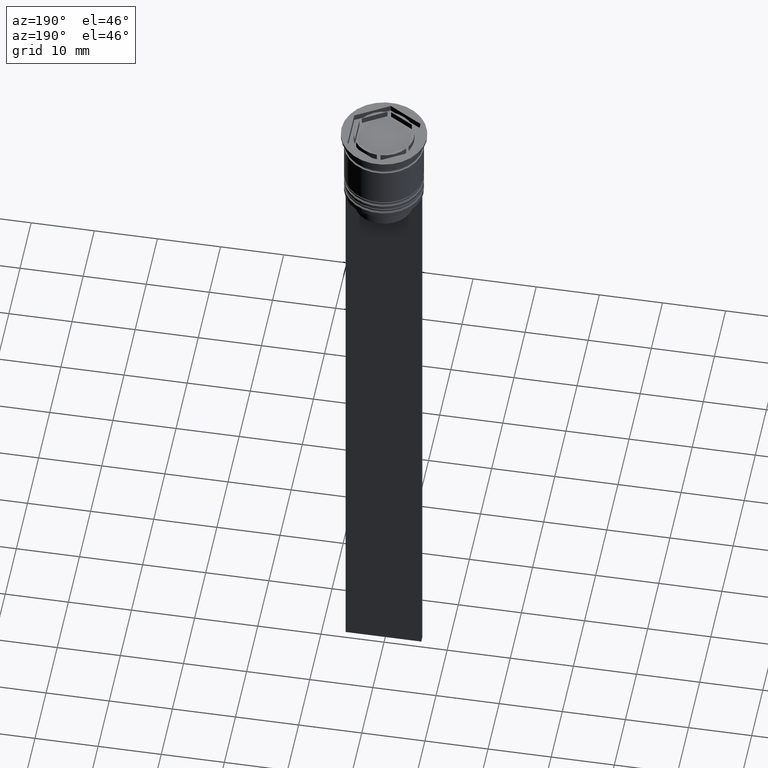
[diagram: clean part render]
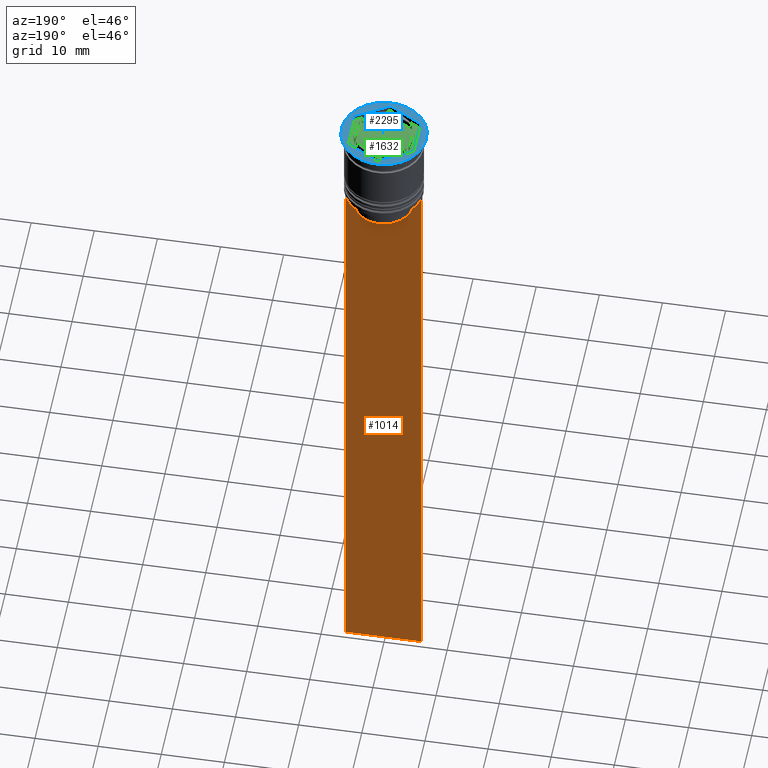
[diagram: same view with three faces highlighted in distinct colors, each labeled with its STEP entity id]
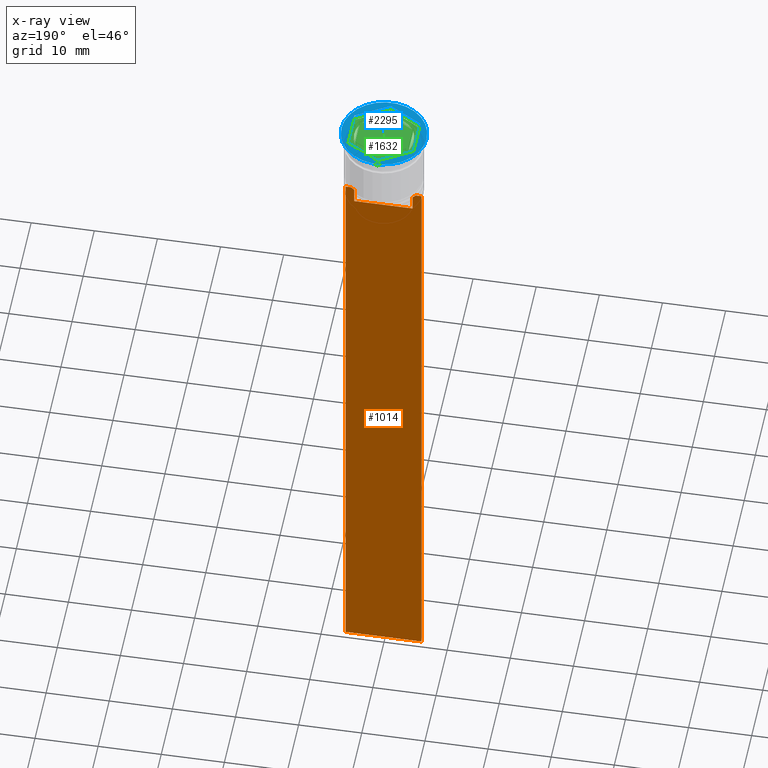
[diagram: x-ray of the same camera — body ghosted, the three highlighted faces saturated]
A machine part, auxiliary view with three faces highlighted in distinct colors.
The next image is the same camera in x-ray (body ghosted, the three faces saturated) — at least one of them is partly hidden behind the body in this view.
Their STEP definitions:

[orange] entity #1014 — the highlighted planar face has unit normal (0, -1, -0).
#8 = CARTESIAN_POINT ( 'NONE',  ( -4.623040125285526436, 0.4999999999999982792, -13.00000000000000178 ) ) ;
#13 = LINE ( 'NONE', #711, #1350 ) ;
#55 = DIRECTION ( 'NONE',  ( 0.000000000000000000, -1.000000000000000000, -0.000000000000000000 ) ) ;
#72 = DIRECTION ( 'NONE',  ( 1.000000000000000000, 0.000000000000000000, 0.000000000000000000 ) ) ;
#87 = LINE ( 'NONE', #1706, #1729 ) ;
#102 = VECTOR ( 'NONE', #1033, 1000.000000000000000 ) ;
#122 = ORIENTED_EDGE ( 'NONE', *, *, #2147, .T. ) ;
#179 = VERTEX_POINT ( 'NONE', #443 ) ;
#193 = CARTESIAN_POINT ( 'NONE',  ( -4.958169823806762189, 0.4999999999999982792, -12.66670956677067750 ) ) ;
#196 = CARTESIAN_POINT ( 'NONE',  ( 6.000000000000016875, 0.4999999999999982792, -12.50000000000000000 ) ) ;
#225 = EDGE_CURVE ( 'NONE', #1423, #2007, #1712, .T. ) ;
#304 = ORIENTED_EDGE ( 'NONE', *, *, #1077, .T. ) ;
#366 = CARTESIAN_POINT ( 'NONE',  ( 6.000000000000016875, 0.4999999999999982792, -0.4584054212077061097 ) ) ;
#377 = LINE ( 'NONE', #366, #2299 ) ;
#434 = EDGE_CURVE ( 'NONE', #2208, #671, #377, .T. ) ;
#443 = CARTESIAN_POINT ( 'NONE',  ( -5.125670687822231564, 0.4999999999999982792, -12.50000000000000000 ) ) ;
#459 = VECTOR ( 'NONE', #1007, 1000.000000000000000 ) ;
#517 = CARTESIAN_POINT ( 'NONE',  ( -5.999999999999983125, 0.4999999999999985012, -12.50000000000000000 ) ) ;
#566 = ORIENTED_EDGE ( 'NONE', *, *, #1523, .T. ) ;
#593 = PLANE ( 'NONE',  #957 ) ;
#608 = CARTESIAN_POINT ( 'NONE',  ( 6.000000000000016875, 0.4999999999999982792, -12.50000000000000000 ) ) ;
#632 = CARTESIAN_POINT ( 'NONE',  ( -4.623040125285526436, 0.4999999999999982792, 0.000000000000000000 ) ) ;
#648 = VECTOR ( 'NONE', #2243, 1000.000000000000000 ) ;
#671 = VERTEX_POINT ( 'NONE', #2248 ) ;
#711 = CARTESIAN_POINT ( 'NONE',  ( 6.000000000000016875, 0.4999999999999982792, -12.50000000000000000 ) ) ;
#781 = CARTESIAN_POINT ( 'NONE',  ( 4.623040125285526436, 0.4999999999999982792, -13.00000000000000178 ) ) ;
#898 = ORIENTED_EDGE ( 'NONE', *, *, #1366, .T. ) ;
#909 = DIRECTION ( 'NONE',  ( 0.000000000000000000, 0.000000000000000000, -1.000000000000000000 ) ) ;
#920 = DIRECTION ( 'NONE',  ( 1.000000000000000000, 0.000000000000000000, 0.000000000000000000 ) ) ;
#947 = DIRECTION ( 'NONE',  ( -1.000000000000000000, 0.000000000000000000, 0.000000000000000000 ) ) ;
#957 = AXIS2_PLACEMENT_3D ( 'NONE', #1341, #55, #966 ) ;
#966 = DIRECTION ( 'NONE',  ( 0.000000000000000000, 0.000000000000000000, -1.000000000000000000 ) ) ;
#1007 = DIRECTION ( 'NONE',  ( 0.000000000000000000, 0.000000000000000000, -1.000000000000000000 ) ) ;
#1011 = LINE ( 'NONE', #1191, #102 ) ;
#1014 = ADVANCED_FACE ( 'NONE', ( #1140 ), #593, .F. ) ;
#1033 = DIRECTION ( 'NONE',  ( 0.000000000000000000, 0.000000000000000000, -1.000000000000000000 ) ) ;
#1053 = CARTESIAN_POINT ( 'NONE',  ( -4.623040125285526436, 0.4999999999999987232, -15.50000000000000000 ) ) ;
#1065 = CARTESIAN_POINT ( 'NONE',  ( 4.623040125285526436, 0.4999999999999987232, -15.50000000000000000 ) ) ;
#1077 = EDGE_CURVE ( 'NONE', #2058, #1884, #87, .T. ) ;
#1105 = CARTESIAN_POINT ( 'NONE',  ( -5.125670687822231564, 0.4999999999999982792, -12.50000000000000000 ) ) ;
#1111 = CARTESIAN_POINT ( 'NONE',  ( 4.623040125285526436, 0.4999999999999982792, -13.00000000000000178 ) ) ;
#1122 = CARTESIAN_POINT ( 'NONE',  ( 5.125670687822231564, 0.4999999999999982792, -12.50000000000000000 ) ) ;
#1129 = ORIENTED_EDGE ( 'NONE', *, *, #2261, .T. ) ;
#1135 = LINE ( 'NONE', #1911, #1310 ) ;
#1140 = FACE_OUTER_BOUND ( 'NONE', #2128, .T. ) ;
#1153 = CARTESIAN_POINT ( 'NONE',  ( -4.623040125285526436, 0.4999999999999982792, -13.00000000000000178 ) ) ;
#1159 = ORIENTED_EDGE ( 'NONE', *, *, #1455, .T. ) ;
#1187 = ORIENTED_EDGE ( 'NONE', *, *, #1960, .T. ) ;
#1191 = CARTESIAN_POINT ( 'NONE',  ( -5.999999999999983125, 0.4999999999999982792, -0.4584054212077061097 ) ) ;
#1310 = VECTOR ( 'NONE', #947, 1000.000000000000000 ) ;
#1320 = CARTESIAN_POINT ( 'NONE',  ( 4.790630799407576745, 0.4999999999999982792, -12.83338098686239093 ) ) ;
#1341 = CARTESIAN_POINT ( 'NONE',  ( 6.000000000000016875, 0.4999999999999982792, -0.4584054212077061097 ) ) ;
#1350 = VECTOR ( 'NONE', #920, 1000.000000000000000 ) ;
#1366 = EDGE_CURVE ( 'NONE', #179, #1423, #1577, .T. ) ;
#1367 = VERTEX_POINT ( 'NONE', #517 ) ;
#1379 = LINE ( 'NONE', #608, #2118 ) ;
#1423 = VERTEX_POINT ( 'NONE', #1153 ) ;
#1455 = EDGE_CURVE ( 'NONE', #671, #1787, #1135, .T. ) ;
#1466 = ORIENTED_EDGE ( 'NONE', *, *, #434, .T. ) ;
#1505 = CARTESIAN_POINT ( 'NONE',  ( 0.000000000000000000, 0.4999999999999987232, -15.50000000000000000 ) ) ;
#1523 = EDGE_CURVE ( 'NONE', #2007, #2058, #1872, .T. ) ;
#1526 = DIRECTION ( 'NONE',  ( -0.000000000000000000, -0.000000000000000000, 1.000000000000000000 ) ) ;
#1559 = VERTEX_POINT ( 'NONE', #2298 ) ;
#1577 = B_SPLINE_CURVE_WITH_KNOTS ( 'NONE', 3,
 ( #1105, #193, #2215, #8 ),
 .UNSPECIFIED., .F., .F.,
 ( 4, 4 ),
 ( 0.008759809102772707357, 0.009468778395565351919 ),
 .UNSPECIFIED. ) ;
#1593 = EDGE_CURVE ( 'NONE', #1367, #1787, #1011, .T. ) ;
#1650 = ORIENTED_EDGE ( 'NONE', *, *, #1593, .F. ) ;
#1698 = CARTESIAN_POINT ( 'NONE',  ( -5.999999999999983125, 0.4999999999999982792, -112.5000000000000000 ) ) ;
#1706 = CARTESIAN_POINT ( 'NONE',  ( 4.623040125285526436, 0.4999999999999982792, 0.000000000000000000 ) ) ;
#1712 = LINE ( 'NONE', #632, #459 ) ;
#1729 = VECTOR ( 'NONE', #1526, 1000.000000000000000 ) ;
#1754 = B_SPLINE_CURVE_WITH_KNOTS ( 'NONE', 3,
 ( #1111, #1320, #1832, #1122 ),
 .UNSPECIFIED., .F., .F.,
 ( 4, 4 ),
 ( 0.02203698174624552433, 0.02275222543365896036 ),
 .UNSPECIFIED. ) ;
#1787 = VERTEX_POINT ( 'NONE', #1698 ) ;
#1832 = CARTESIAN_POINT ( 'NONE',  ( 4.958169719475987058, 0.4999999999999982792, -12.66670967060858111 ) ) ;
#1872 = LINE ( 'NONE', #1505, #648 ) ;
#1884 = VERTEX_POINT ( 'NONE', #781 ) ;
#1911 = CARTESIAN_POINT ( 'NONE',  ( 6.000000000000016875, 0.4999999999999982792, -112.5000000000000000 ) ) ;
#1960 = EDGE_CURVE ( 'NONE', #1559, #2208, #1379, .T. ) ;
#2007 = VERTEX_POINT ( 'NONE', #1053 ) ;
#2022 = ORIENTED_EDGE ( 'NONE', *, *, #225, .T. ) ;
#2058 = VERTEX_POINT ( 'NONE', #1065 ) ;
#2118 = VECTOR ( 'NONE', #72, 1000.000000000000000 ) ;
#2128 = EDGE_LOOP ( 'NONE', ( #1129, #898, #2022, #566, #304, #122, #1187, #1466, #1159, #1650 ) ) ;
#2147 = EDGE_CURVE ( 'NONE', #1884, #1559, #1754, .T. ) ;
#2208 = VERTEX_POINT ( 'NONE', #196 ) ;
#2215 = CARTESIAN_POINT ( 'NONE',  ( -4.790630915080666519, 0.4999999999999982792, -12.83338087185995313 ) ) ;
#2243 = DIRECTION ( 'NONE',  ( 1.000000000000000000, 0.000000000000000000, 0.000000000000000000 ) ) ;
#2248 = CARTESIAN_POINT ( 'NONE',  ( 6.000000000000016875, 0.4999999999999982792, -112.5000000000000000 ) ) ;
#2261 = EDGE_CURVE ( 'NONE', #1367, #179, #13, .T. ) ;
#2298 = CARTESIAN_POINT ( 'NONE',  ( 5.125670687822231564, 0.4999999999999982792, -12.50000000000000000 ) ) ;
#2299 = VECTOR ( 'NONE', #909, 1000.000000000000000 ) ;

[blue] entity #2295 — the highlighted planar face has unit normal (0, -0, 1).
#9 = ORIENTED_EDGE ( 'NONE', *, *, #736, .T. ) ;
#88 = FACE_OUTER_BOUND ( 'NONE', #686, .T. ) ;
#139 = VECTOR ( 'NONE', #497, 1000.000000000000000 ) ;
#140 = CARTESIAN_POINT ( 'NONE',  ( 8.729740977282959667E-16, -6.062177826491071286, 0.000000000000000000 ) ) ;
#205 = CIRCLE ( 'NONE', #2110, 6.750000000000000000 ) ;
#237 = DIRECTION ( 'NONE',  ( 0.000000000000000000, -0.000000000000000000, 1.000000000000000000 ) ) ;
#300 = CARTESIAN_POINT ( 'NONE',  ( 6.750000000000000000, 0.000000000000000000, 0.000000000000000000 ) ) ;
#319 = CARTESIAN_POINT ( 'NONE',  ( 5.250000000000000888, -3.031088913245536087, 0.000000000000000000 ) ) ;
#323 = VECTOR ( 'NONE', #1781, 1000.000000000000227 ) ;
#349 = EDGE_CURVE ( 'NONE', #596, #2004, #1416, .T. ) ;
#370 = VERTEX_POINT ( 'NONE', #1440 ) ;
#442 = LINE ( 'NONE', #1369, #1190 ) ;
#456 = ORIENTED_EDGE ( 'NONE', *, *, #2083, .F. ) ;
#464 = DIRECTION ( 'NONE',  ( 1.000000000000000000, 0.000000000000000000, 0.000000000000000000 ) ) ;
#473 = DIRECTION ( 'NONE',  ( 1.000000000000000000, 0.000000000000000000, 0.000000000000000000 ) ) ;
#491 = AXIS2_PLACEMENT_3D ( 'NONE', #1232, #2152, #464 ) ;
#497 = DIRECTION ( 'NONE',  ( 0.8660254037844387076, -0.4999999999999998335, 0.000000000000000000 ) ) ;
#511 = VERTEX_POINT ( 'NONE', #729 ) ;
#520 = CARTESIAN_POINT ( 'NONE',  ( 0.000000000000000000, 6.062177826491072175, 0.000000000000000000 ) ) ;
#594 = DIRECTION ( 'NONE',  ( 1.000000000000000000, 0.000000000000000000, 0.000000000000000000 ) ) ;
#596 = VERTEX_POINT ( 'NONE', #2102 ) ;
#653 = LINE ( 'NONE', #2333, #139 ) ;
#686 = EDGE_LOOP ( 'NONE', ( #865, #9 ) ) ;
#701 = LINE ( 'NONE', #520, #323 ) ;
#718 = EDGE_CURVE ( 'NONE', #1544, #1242, #205, .T. ) ;
#729 = CARTESIAN_POINT ( 'NONE',  ( 0.000000000000000000, 6.062177826491072175, 0.000000000000000000 ) ) ;
#736 = EDGE_CURVE ( 'NONE', #1242, #1544, #1725, .T. ) ;
#797 = CARTESIAN_POINT ( 'NONE',  ( 0.000000000000000000, 0.000000000000000000, 0.000000000000000000 ) ) ;
#858 = DIRECTION ( 'NONE',  ( -0.000000000000000000, -0.000000000000000000, 1.000000000000000000 ) ) ;
#865 = ORIENTED_EDGE ( 'NONE', *, *, #718, .T. ) ;
#890 = DIRECTION ( 'NONE',  ( -0.8660254037844385966, 0.4999999999999998890, 0.000000000000000000 ) ) ;
#937 = ORIENTED_EDGE ( 'NONE', *, *, #1919, .F. ) ;
#983 = CARTESIAN_POINT ( 'NONE',  ( -5.250000000000000888, 3.031088913245535643, 0.000000000000000000 ) ) ;
#1001 = AXIS2_PLACEMENT_3D ( 'NONE', #797, #237, #594 ) ;
#1017 = DIRECTION ( 'NONE',  ( 0.8660254037844385966, 0.4999999999999999445, 0.000000000000000000 ) ) ;
#1086 = LINE ( 'NONE', #2030, #1148 ) ;
#1138 = VECTOR ( 'NONE', #1017, 1000.000000000000114 ) ;
#1143 = EDGE_CURVE ( 'NONE', #1482, #1178, #2302, .T. ) ;
#1148 = VECTOR ( 'NONE', #890, 1000.000000000000227 ) ;
#1178 = VERTEX_POINT ( 'NONE', #1240 ) ;
#1181 = DIRECTION ( 'NONE',  ( 0.000000000000000000, 1.000000000000000000, 0.000000000000000000 ) ) ;
#1190 = VECTOR ( 'NONE', #1181, 1000.000000000000000 ) ;
#1232 = CARTESIAN_POINT ( 'NONE',  ( 0.000000000000000000, 0.000000000000000000, 0.000000000000000000 ) ) ;
#1240 = CARTESIAN_POINT ( 'NONE',  ( -5.250000000000000888, -3.031088913245536087, 0.000000000000000000 ) ) ;
#1242 = VERTEX_POINT ( 'NONE', #1375 ) ;
#1358 = EDGE_CURVE ( 'NONE', #370, #511, #1086, .T. ) ;
#1369 = CARTESIAN_POINT ( 'NONE',  ( 5.250000000000000888, -3.031088913245536087, 0.000000000000000000 ) ) ;
#1375 = CARTESIAN_POINT ( 'NONE',  ( -6.750000000000000000, 8.266365894244634333E-16, 0.000000000000000000 ) ) ;
#1413 = CARTESIAN_POINT ( 'NONE',  ( 0.000000000000000000, 0.000000000000000000, 0.000000000000000000 ) ) ;
#1416 = LINE ( 'NONE', #140, #1138 ) ;
#1440 = CARTESIAN_POINT ( 'NONE',  ( 5.250000000000000888, 3.031088913245536087, 0.000000000000000000 ) ) ;
#1482 = VERTEX_POINT ( 'NONE', #983 ) ;
#1506 = ORIENTED_EDGE ( 'NONE', *, *, #1358, .F. ) ;
#1544 = VERTEX_POINT ( 'NONE', #300 ) ;
#1598 = DIRECTION ( 'NONE',  ( 0.000000000000000000, -1.000000000000000000, 0.000000000000000000 ) ) ;
#1675 = ORIENTED_EDGE ( 'NONE', *, *, #1143, .F. ) ;
#1725 = CIRCLE ( 'NONE', #491, 6.750000000000000000 ) ;
#1753 = EDGE_LOOP ( 'NONE', ( #1506, #937, #2308, #456, #1675, #1998 ) ) ;
#1781 = DIRECTION ( 'NONE',  ( -0.8660254037844385966, -0.5000000000000000000, 0.000000000000000000 ) ) ;
#1889 = PLANE ( 'NONE',  #1001 ) ;
#1919 = EDGE_CURVE ( 'NONE', #2004, #370, #442, .T. ) ;
#1998 = ORIENTED_EDGE ( 'NONE', *, *, #2104, .F. ) ;
#2003 = VECTOR ( 'NONE', #1598, 1000.000000000000000 ) ;
#2004 = VERTEX_POINT ( 'NONE', #319 ) ;
#2030 = CARTESIAN_POINT ( 'NONE',  ( 5.250000000000000888, 3.031088913245536087, 0.000000000000000000 ) ) ;
#2083 = EDGE_CURVE ( 'NONE', #1178, #596, #653, .T. ) ;
#2102 = CARTESIAN_POINT ( 'NONE',  ( 8.729740977282959667E-16, -6.062177826491071286, 0.000000000000000000 ) ) ;
#2104 = EDGE_CURVE ( 'NONE', #511, #1482, #701, .T. ) ;
#2110 = AXIS2_PLACEMENT_3D ( 'NONE', #1413, #858, #473 ) ;
#2152 = DIRECTION ( 'NONE',  ( -0.000000000000000000, -0.000000000000000000, 1.000000000000000000 ) ) ;
#2247 = FACE_BOUND ( 'NONE', #1753, .T. ) ;
#2288 = CARTESIAN_POINT ( 'NONE',  ( -5.250000000000000888, 3.031088913245535643, 0.000000000000000000 ) ) ;
#2295 = ADVANCED_FACE ( 'NONE', ( #2247, #88 ), #1889, .T. ) ;
#2302 = LINE ( 'NONE', #2288, #2003 ) ;
#2308 = ORIENTED_EDGE ( 'NONE', *, *, #349, .F. ) ;
#2333 = CARTESIAN_POINT ( 'NONE',  ( -5.250000000000000888, -3.031088913245536087, 0.000000000000000000 ) ) ;

[green] entity #1632 — the highlighted planar face has unit normal (0, 0, 1).
#2 = DIRECTION ( 'NONE',  ( 0.8660254037844387076, -0.4999999999999998335, 0.000000000000000000 ) ) ;
#5 = ORIENTED_EDGE ( 'NONE', *, *, #1708, .T. ) ;
#21 = VERTEX_POINT ( 'NONE', #590 ) ;
#28 = EDGE_CURVE ( 'NONE', #1972, #1020, #390, .T. ) ;
#40 = LINE ( 'NONE', #741, #2260 ) ;
#42 = DIRECTION ( 'NONE',  ( 1.000000000000000000, 0.000000000000000000, 0.000000000000000000 ) ) ;
#50 = CARTESIAN_POINT ( 'NONE',  ( 5.250000000000000888, 3.031088913245536087, -1.000000000000000000 ) ) ;
#66 = VERTEX_POINT ( 'NONE', #405 ) ;
#73 = DIRECTION ( 'NONE',  ( 0.8660254037844385966, 0.4999999999999999445, 0.000000000000000000 ) ) ;
#112 = CARTESIAN_POINT ( 'NONE',  ( 0.000000000000000000, 0.000000000000000000, -1.000000000000000000 ) ) ;
#133 = VERTEX_POINT ( 'NONE', #2042 ) ;
#138 = CARTESIAN_POINT ( 'NONE',  ( 4.249999999999999112, -2.121320343559645938, -1.000000000000000888 ) ) ;
#186 = LINE ( 'NONE', #2207, #924 ) ;
#195 = CARTESIAN_POINT ( 'NONE',  ( 0.000000000000000000, 6.062177826491072175, -1.000000000000000000 ) ) ;
#206 = EDGE_CURVE ( 'NONE', #21, #1458, #981, .T. ) ;
#216 = EDGE_LOOP ( 'NONE', ( #1796, #482 ) ) ;
#228 = DIRECTION ( 'NONE',  ( 0.000000000000000000, 1.000000000000000000, 0.000000000000000000 ) ) ;
#230 = DIRECTION ( 'NONE',  ( 0.000000000000000000, -1.000000000000000000, 0.000000000000000000 ) ) ;
#250 = EDGE_LOOP ( 'NONE', ( #1231, #479 ) ) ;
#257 = CARTESIAN_POINT ( 'NONE',  ( 8.729740977282959667E-16, -6.062177826491071286, -1.000000000000000000 ) ) ;
#259 = CARTESIAN_POINT ( 'NONE',  ( 0.000000000000000000, 0.000000000000000000, -1.000000000000000000 ) ) ;
#263 = LINE ( 'NONE', #1745, #1574 ) ;
#268 = ORIENTED_EDGE ( 'NONE', *, *, #1201, .F. ) ;
#270 = CARTESIAN_POINT ( 'NONE',  ( 5.250000000000000888, -3.031088913245536087, -1.000000000000000000 ) ) ;
#313 = CIRCLE ( 'NONE', #1810, 4.750000000000000888 ) ;
#382 = AXIS2_PLACEMENT_3D ( 'NONE', #1117, #911, #42 ) ;
#385 = LINE ( 'NONE', #700, #609 ) ;
#390 = CIRCLE ( 'NONE', #382, 4.750000000000000888 ) ;
#394 = EDGE_CURVE ( 'NONE', #965, #1480, #1881, .T. ) ;
#400 = CARTESIAN_POINT ( 'NONE',  ( -4.250000000000000000, 2.121320343559643717, -1.000000000000000888 ) ) ;
#401 = DIRECTION ( 'NONE',  ( 0.000000000000000000, 1.000000000000000000, 0.000000000000000000 ) ) ;
#402 = LINE ( 'NONE', #1082, #1806 ) ;
#405 = CARTESIAN_POINT ( 'NONE',  ( 3.962117307087384521, -2.619947794304042787, -1.000000000000000888 ) ) ;
#417 = ORIENTED_EDGE ( 'NONE', *, *, #544, .F. ) ;
#441 = DIRECTION ( 'NONE',  ( 0.000000000000000000, 0.000000000000000000, 1.000000000000000000 ) ) ;
#450 = CARTESIAN_POINT ( 'NONE',  ( -0.2878826929126160894, 4.741268137863686505, -1.000000000000000888 ) ) ;
#457 = PLANE ( 'NONE',  #1271 ) ;
#469 = FACE_BOUND ( 'NONE', #1277, .T. ) ;
#479 = ORIENTED_EDGE ( 'NONE', *, *, #1905, .F. ) ;
#482 = ORIENTED_EDGE ( 'NONE', *, *, #539, .F. ) ;
#498 = EDGE_CURVE ( 'NONE', #1397, #1873, #402, .T. ) ;
#515 = DIRECTION ( 'NONE',  ( 0.8660254037844387076, -0.4999999999999998335, 0.000000000000000000 ) ) ;
#527 = ORIENTED_EDGE ( 'NONE', *, *, #498, .F. ) ;
#539 = EDGE_CURVE ( 'NONE', #2258, #133, #1656, .T. ) ;
#544 = EDGE_CURVE ( 'NONE', #1020, #1972, #40, .T. ) ;
#551 = ORIENTED_EDGE ( 'NONE', *, *, #1680, .T. ) ;
#557 = EDGE_CURVE ( 'NONE', #1873, #1397, #1415, .T. ) ;
#590 = CARTESIAN_POINT ( 'NONE',  ( 8.729740977282959667E-16, -6.062177826491071286, -1.000000000000000000 ) ) ;
#609 = VECTOR ( 'NONE', #2, 1000.000000000000000 ) ;
#629 = DIRECTION ( 'NONE',  ( 1.000000000000000000, 0.000000000000000000, 0.000000000000000000 ) ) ;
#644 = EDGE_CURVE ( 'NONE', #1480, #1857, #1266, .T. ) ;
#646 = FACE_BOUND ( 'NONE', #1991, .T. ) ;
#660 = ORIENTED_EDGE ( 'NONE', *, *, #1672, .T. ) ;
#667 = FACE_OUTER_BOUND ( 'NONE', #1627, .T. ) ;
#700 = CARTESIAN_POINT ( 'NONE',  ( 4.250000000000000000, 2.453738644055910800, -1.000000000000000888 ) ) ;
#710 = VERTEX_POINT ( 'NONE', #834 ) ;
#732 = AXIS2_PLACEMENT_3D ( 'NONE', #2224, #1313, #2054 ) ;
#737 = ORIENTED_EDGE ( 'NONE', *, *, #644, .F. ) ;
#741 = CARTESIAN_POINT ( 'NONE',  ( 4.249999999999999112, -2.453738644055910356, -1.000000000000000888 ) ) ;
#757 = VECTOR ( 'NONE', #73, 1000.000000000000114 ) ;
#761 = CARTESIAN_POINT ( 'NONE',  ( 4.249999999999999112, 2.121320343559644162, -1.000000000000000888 ) ) ;
#778 = LINE ( 'NONE', #787, #1700 ) ;
#785 = ORIENTED_EDGE ( 'NONE', *, *, #394, .F. ) ;
#787 = CARTESIAN_POINT ( 'NONE',  ( 0.000000000000000000, 6.062177826491072175, -1.000000000000000000 ) ) ;
#799 = ORIENTED_EDGE ( 'NONE', *, *, #927, .F. ) ;
#818 = LINE ( 'NONE', #2287, #1533 ) ;
#821 = DIRECTION ( 'NONE',  ( 1.000000000000000000, 0.000000000000000000, 0.000000000000000000 ) ) ;
#834 = CARTESIAN_POINT ( 'NONE',  ( 0.2878826929126150347, -4.741268137863686505, -1.000000000000000888 ) ) ;
#843 = CIRCLE ( 'NONE', #1418, 4.750000000000000888 ) ;
#870 = AXIS2_PLACEMENT_3D ( 'NONE', #1344, #441, #821 ) ;
#911 = DIRECTION ( 'NONE',  ( 0.000000000000000000, 0.000000000000000000, 1.000000000000000000 ) ) ;
#924 = VECTOR ( 'NONE', #228, 1000.000000000000000 ) ;
#927 = EDGE_CURVE ( 'NONE', #1392, #1625, #385, .T. ) ;
#930 = VERTEX_POINT ( 'NONE', #1651 ) ;
#942 = LINE ( 'NONE', #1309, #1818 ) ;
#959 = DIRECTION ( 'NONE',  ( -0.8660254037844385966, 0.4999999999999998890, 0.000000000000000000 ) ) ;
#960 = VECTOR ( 'NONE', #230, 1000.000000000000000 ) ;
#965 = VERTEX_POINT ( 'NONE', #400 ) ;
#981 = LINE ( 'NONE', #257, #757 ) ;
#988 = VERTEX_POINT ( 'NONE', #195 ) ;
#1020 = VERTEX_POINT ( 'NONE', #761 ) ;
#1066 = DIRECTION ( 'NONE',  ( 0.000000000000000000, 0.000000000000000000, 1.000000000000000000 ) ) ;
#1069 = EDGE_CURVE ( 'NONE', #133, #2258, #843, .T. ) ;
#1081 = CARTESIAN_POINT ( 'NONE',  ( -0.2878826929126160894, -4.741268137863686505, -1.000000000000000888 ) ) ;
#1082 = CARTESIAN_POINT ( 'NONE',  ( 4.336808689942017736E-16, 4.907477288111819824, -1.000000000000000888 ) ) ;
#1117 = CARTESIAN_POINT ( 'NONE',  ( 0.000000000000000000, 0.000000000000000000, -1.000000000000000000 ) ) ;
#1167 = CARTESIAN_POINT ( 'NONE',  ( -4.250000000000000000, -2.121320343559643717, -1.000000000000000888 ) ) ;
#1183 = AXIS2_PLACEMENT_3D ( 'NONE', #1546, #1356, #629 ) ;
#1199 = EDGE_LOOP ( 'NONE', ( #268, #799 ) ) ;
#1200 = CARTESIAN_POINT ( 'NONE',  ( 0.000000000000000000, 0.000000000000000000, -1.000000000000000000 ) ) ;
#1201 = EDGE_CURVE ( 'NONE', #1625, #1392, #313, .T. ) ;
#1208 = DIRECTION ( 'NONE',  ( 1.000000000000000000, 0.000000000000000000, 0.000000000000000000 ) ) ;
#1210 = FACE_BOUND ( 'NONE', #1631, .T. ) ;
#1212 = DIRECTION ( 'NONE',  ( 1.000000000000000000, 0.000000000000000000, 0.000000000000000000 ) ) ;
#1231 = ORIENTED_EDGE ( 'NONE', *, *, #1829, .F. ) ;
#1266 = CIRCLE ( 'NONE', #1183, 4.750000000000000888 ) ;
#1271 = AXIS2_PLACEMENT_3D ( 'NONE', #1200, #2145, #2318 ) ;
#1272 = ORIENTED_EDGE ( 'NONE', *, *, #206, .T. ) ;
#1277 = EDGE_LOOP ( 'NONE', ( #1826, #527 ) ) ;
#1279 = ORIENTED_EDGE ( 'NONE', *, *, #28, .F. ) ;
#1289 = DIRECTION ( 'NONE',  ( -0.8660254037844385966, 0.5000000000000001110, 0.000000000000000000 ) ) ;
#1309 = CARTESIAN_POINT ( 'NONE',  ( 5.250000000000000888, -3.031088913245536087, -1.000000000000000000 ) ) ;
#1313 = DIRECTION ( 'NONE',  ( 0.000000000000000000, 0.000000000000000000, 1.000000000000000000 ) ) ;
#1317 = CARTESIAN_POINT ( 'NONE',  ( -4.750000000000000888, 0.000000000000000000, -1.000000000000000000 ) ) ;
#1342 = DIRECTION ( 'NONE',  ( -0.8660254037844385966, -0.5000000000000000000, 0.000000000000000000 ) ) ;
#1344 = CARTESIAN_POINT ( 'NONE',  ( 0.000000000000000000, 0.000000000000000000, -1.000000000000000000 ) ) ;
#1356 = DIRECTION ( 'NONE',  ( 0.000000000000000000, 0.000000000000000000, 1.000000000000000000 ) ) ;
#1357 = CARTESIAN_POINT ( 'NONE',  ( -5.250000000000000888, -3.031088913245536087, -1.000000000000000000 ) ) ;
#1392 = VERTEX_POINT ( 'NONE', #1457 ) ;
#1397 = VERTEX_POINT ( 'NONE', #2175 ) ;
#1415 = CIRCLE ( 'NONE', #870, 4.750000000000000888 ) ;
#1418 = AXIS2_PLACEMENT_3D ( 'NONE', #259, #2059, #1715 ) ;
#1457 = CARTESIAN_POINT ( 'NONE',  ( 0.2878826929126145906, 4.741268137863685617, -1.000000000000000888 ) ) ;
#1458 = VERTEX_POINT ( 'NONE', #270 ) ;
#1476 = DIRECTION ( 'NONE',  ( -1.767428939690775055E-16, -1.000000000000000000, 0.000000000000000000 ) ) ;
#1480 = VERTEX_POINT ( 'NONE', #1317 ) ;
#1498 = CIRCLE ( 'NONE', #732, 4.750000000000000888 ) ;
#1500 = CARTESIAN_POINT ( 'NONE',  ( -4.250000000000000000, -2.453738644055909912, -1.000000000000000888 ) ) ;
#1533 = VECTOR ( 'NONE', #959, 1000.000000000000227 ) ;
#1546 = CARTESIAN_POINT ( 'NONE',  ( 0.000000000000000000, 0.000000000000000000, -1.000000000000000000 ) ) ;
#1551 = DIRECTION ( 'NONE',  ( 0.000000000000000000, 0.000000000000000000, 1.000000000000000000 ) ) ;
#1574 = VECTOR ( 'NONE', #2072, 1000.000000000000000 ) ;
#1575 = CARTESIAN_POINT ( 'NONE',  ( 3.962117307087384521, 2.619947794304043232, -1.000000000000000888 ) ) ;
#1620 = ORIENTED_EDGE ( 'NONE', *, *, #2133, .F. ) ;
#1625 = VERTEX_POINT ( 'NONE', #1575 ) ;
#1627 = EDGE_LOOP ( 'NONE', ( #660, #1761, #5, #551, #1272, #1958 ) ) ;
#1630 = DIRECTION ( 'NONE',  ( 0.8660254037844385966, 0.5000000000000001110, -0.000000000000000000 ) ) ;
#1631 = EDGE_LOOP ( 'NONE', ( #785, #1620, #737 ) ) ;
#1632 = ADVANCED_FACE ( 'NONE', ( #2312, #646, #2109, #1945, #1210, #469, #667 ), #457, .T. ) ;
#1651 = CARTESIAN_POINT ( 'NONE',  ( -5.250000000000000888, 3.031088913245535643, -1.000000000000000000 ) ) ;
#1656 = LINE ( 'NONE', #1500, #2149 ) ;
#1672 = EDGE_CURVE ( 'NONE', #1791, #988, #818, .T. ) ;
#1680 = EDGE_CURVE ( 'NONE', #1886, #21, #2239, .T. ) ;
#1694 = VECTOR ( 'NONE', #515, 1000.000000000000000 ) ;
#1700 = VECTOR ( 'NONE', #1342, 1000.000000000000227 ) ;
#1708 = EDGE_CURVE ( 'NONE', #930, #1886, #2159, .T. ) ;
#1715 = DIRECTION ( 'NONE',  ( 1.000000000000000000, 0.000000000000000000, 0.000000000000000000 ) ) ;
#1745 = CARTESIAN_POINT ( 'NONE',  ( -8.673617379884035472E-16, -4.907477288111819824, -1.000000000000000888 ) ) ;
#1761 = ORIENTED_EDGE ( 'NONE', *, *, #2290, .T. ) ;
#1791 = VERTEX_POINT ( 'NONE', #50 ) ;
#1796 = ORIENTED_EDGE ( 'NONE', *, *, #1069, .F. ) ;
#1806 = VECTOR ( 'NONE', #1630, 1000.000000000000000 ) ;
#1810 = AXIS2_PLACEMENT_3D ( 'NONE', #112, #1551, #1212 ) ;
#1818 = VECTOR ( 'NONE', #401, 1000.000000000000000 ) ;
#1826 = ORIENTED_EDGE ( 'NONE', *, *, #557, .F. ) ;
#1829 = EDGE_CURVE ( 'NONE', #710, #66, #1498, .T. ) ;
#1857 = VERTEX_POINT ( 'NONE', #1167 ) ;
#1873 = VERTEX_POINT ( 'NONE', #450 ) ;
#1881 = CIRCLE ( 'NONE', #2075, 4.750000000000000888 ) ;
#1886 = VERTEX_POINT ( 'NONE', #1357 ) ;
#1905 = EDGE_CURVE ( 'NONE', #66, #710, #263, .T. ) ;
#1945 = FACE_BOUND ( 'NONE', #216, .T. ) ;
#1958 = ORIENTED_EDGE ( 'NONE', *, *, #2241, .T. ) ;
#1972 = VERTEX_POINT ( 'NONE', #138 ) ;
#1991 = EDGE_LOOP ( 'NONE', ( #1279, #417 ) ) ;
#2042 = CARTESIAN_POINT ( 'NONE',  ( -3.962117307087385409, -2.619947794304041899, -1.000000000000000888 ) ) ;
#2054 = DIRECTION ( 'NONE',  ( 1.000000000000000000, 0.000000000000000000, 0.000000000000000000 ) ) ;
#2059 = DIRECTION ( 'NONE',  ( 0.000000000000000000, 0.000000000000000000, 1.000000000000000000 ) ) ;
#2062 = CARTESIAN_POINT ( 'NONE',  ( -5.250000000000000888, 3.031088913245535643, -1.000000000000000000 ) ) ;
#2072 = DIRECTION ( 'NONE',  ( -0.8660254037844387076, -0.4999999999999999445, 0.000000000000000000 ) ) ;
#2075 = AXIS2_PLACEMENT_3D ( 'NONE', #2155, #1066, #1208 ) ;
#2109 = FACE_BOUND ( 'NONE', #250, .T. ) ;
#2133 = EDGE_CURVE ( 'NONE', #1857, #965, #186, .T. ) ;
#2145 = DIRECTION ( 'NONE',  ( 0.000000000000000000, 0.000000000000000000, 1.000000000000000000 ) ) ;
#2149 = VECTOR ( 'NONE', #1289, 1000.000000000000000 ) ;
#2155 = CARTESIAN_POINT ( 'NONE',  ( 0.000000000000000000, 0.000000000000000000, -1.000000000000000000 ) ) ;
#2159 = LINE ( 'NONE', #2062, #960 ) ;
#2175 = CARTESIAN_POINT ( 'NONE',  ( -3.962117307087385409, 2.619947794304041899, -1.000000000000000888 ) ) ;
#2207 = CARTESIAN_POINT ( 'NONE',  ( -4.250000000000000000, 2.453738644055909468, -1.000000000000000888 ) ) ;
#2212 = CARTESIAN_POINT ( 'NONE',  ( -5.250000000000000888, -3.031088913245536087, -1.000000000000000000 ) ) ;
#2224 = CARTESIAN_POINT ( 'NONE',  ( 0.000000000000000000, 0.000000000000000000, -1.000000000000000000 ) ) ;
#2239 = LINE ( 'NONE', #2212, #1694 ) ;
#2241 = EDGE_CURVE ( 'NONE', #1458, #1791, #942, .T. ) ;
#2258 = VERTEX_POINT ( 'NONE', #1081 ) ;
#2260 = VECTOR ( 'NONE', #1476, 1000.000000000000000 ) ;
#2287 = CARTESIAN_POINT ( 'NONE',  ( 5.250000000000000888, 3.031088913245536087, -1.000000000000000000 ) ) ;
#2290 = EDGE_CURVE ( 'NONE', #988, #930, #778, .T. ) ;
#2312 = FACE_BOUND ( 'NONE', #1199, .T. ) ;
#2318 = DIRECTION ( 'NONE',  ( 1.000000000000000000, 0.000000000000000000, -0.000000000000000000 ) ) ;